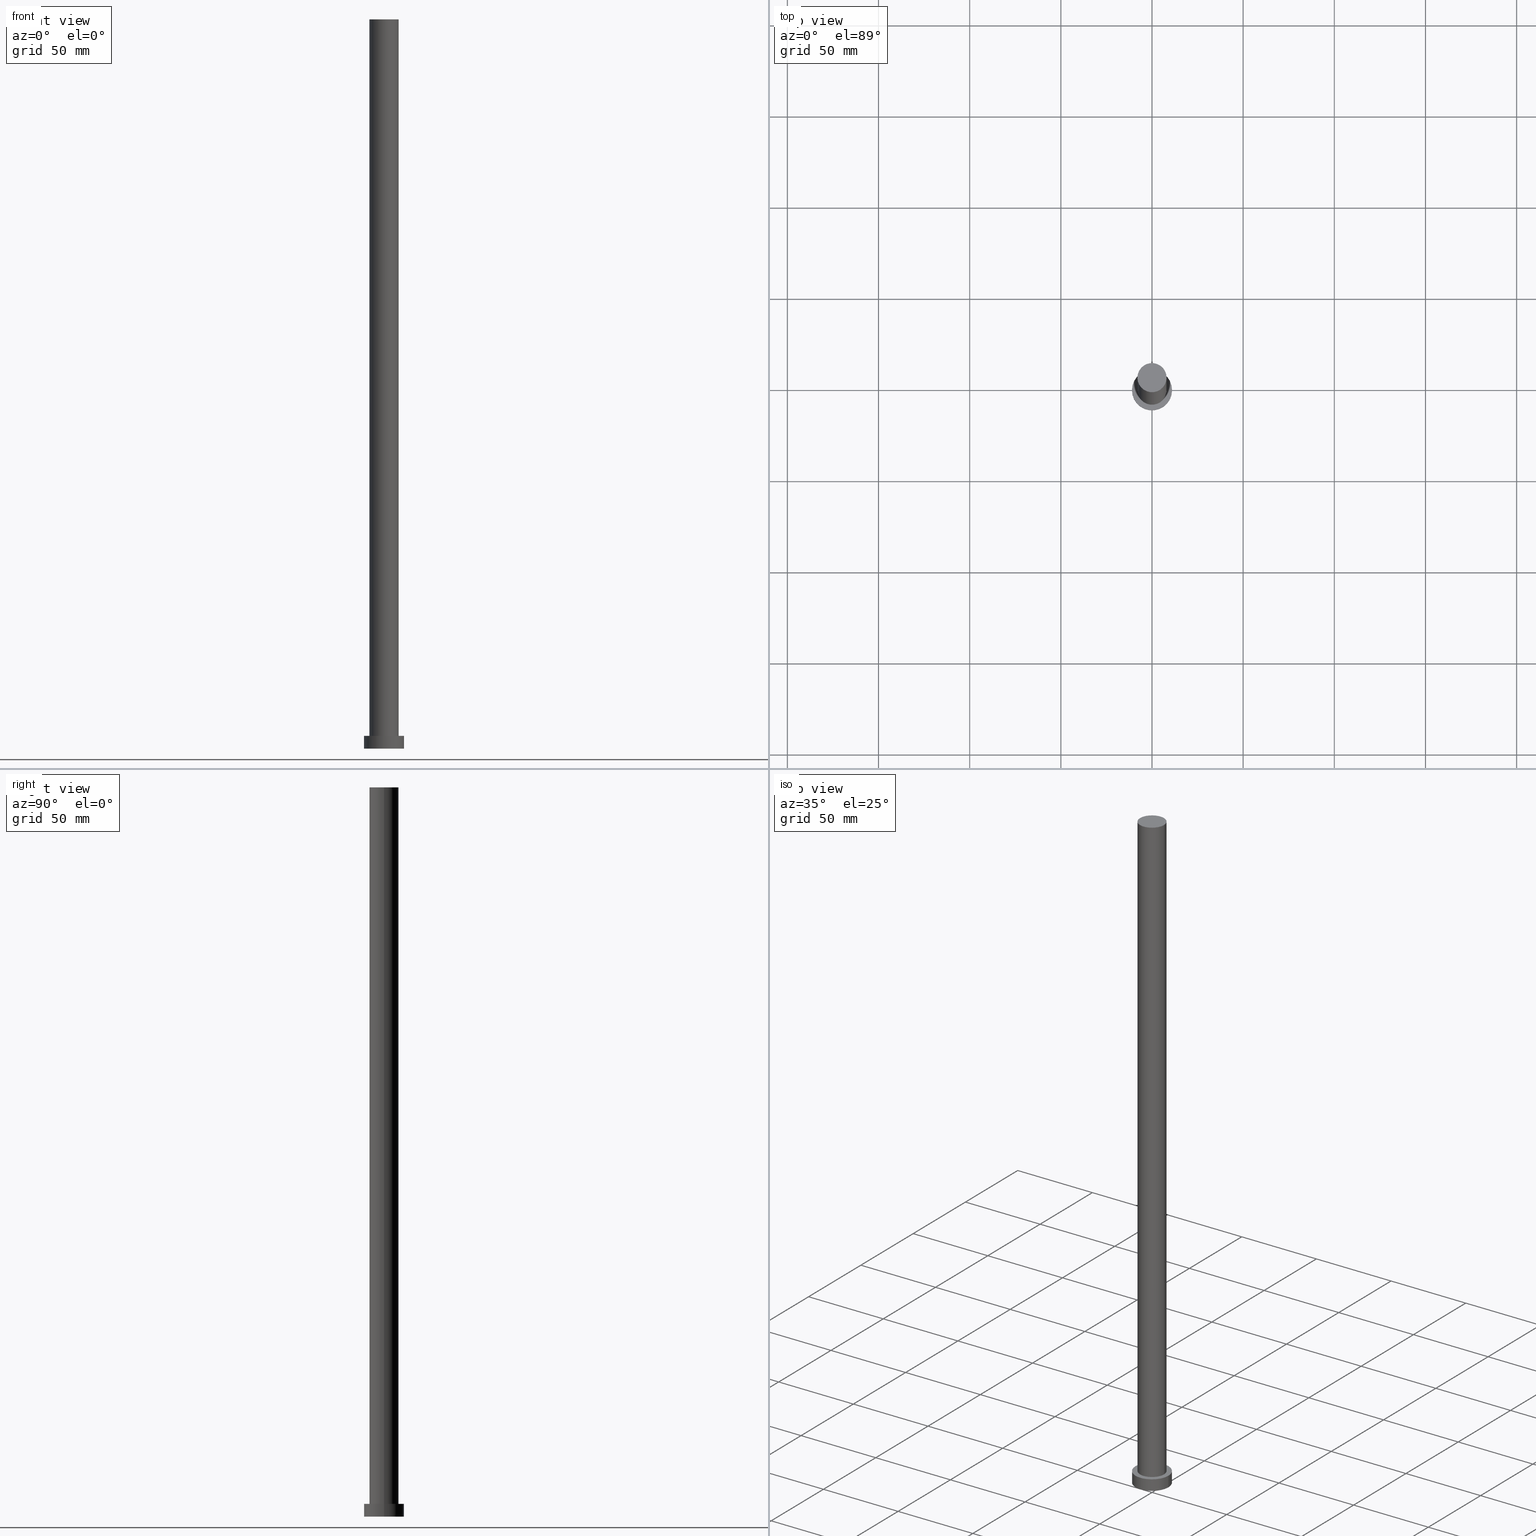
[diagram: canonical four-view strip — front | top / right | iso, engineering-drawing reading convention]
A machine part, canonical four-view strip (front | top / right | iso — engineering-drawing reading convention). The complete STEP part file that produces these views, byte-faithful:
ISO-10303-21;
HEADER;
FILE_DESCRIPTION (( 'STEP AP203' ),
    '1' );
FILE_NAME ('fac7.STEP',
    '2023-02-13T09:14:38',
    ( '' ),
    ( '' ),
    'SwSTEP 2.0',
    'SolidWorks 2019',
    '' );
FILE_SCHEMA (( 'CONFIG_CONTROL_DESIGN' ));
ENDSEC;

DATA;
#1 = CC_DESIGN_PERSON_AND_ORGANIZATION_ASSIGNMENT ( #152, #17, ( #95 ) ) ;
#2 = EDGE_LOOP ( 'NONE', ( #119, #62, #93, #112 ) ) ;
#3 = CARTESIAN_POINT ( 'NONE',  ( -11.00000000000000000, 0.000000000000000000, 0.000000000000000000 ) ) ;
#4 = DIRECTION ( 'NONE',  ( 1.000000000000000000, 0.000000000000000000, 0.000000000000000000 ) ) ;
#5 = EDGE_CURVE ( 'NONE', #236, #142, #19, .T. ) ;
#6 = CARTESIAN_POINT ( 'NONE',  ( 0.000000000000000000, 0.000000000000000000, 7.000000000000000000 ) ) ;
#7 = ORIENTED_EDGE ( 'NONE', *, *, #237, .F. ) ;
#8 = DIRECTION ( 'NONE',  ( 0.000000000000000000, 0.000000000000000000, 1.000000000000000000 ) ) ;
#9 = DIRECTION ( 'NONE',  ( 1.000000000000000000, 0.000000000000000000, 0.000000000000000000 ) ) ;
#10 = APPROVAL_ROLE ( '' ) ;
#11 = APPROVAL ( #233, 'NEUR�EN�' ) ;
#12 = CYLINDRICAL_SURFACE ( 'NONE', #150, 11.00000000000000000 ) ;
#13 = APPLICATION_CONTEXT ( 'configuration controlled 3d designs of mechanical parts and assemblies' ) ;
#14 = APPROVAL_ROLE ( '' ) ;
#15 = CIRCLE ( 'NONE', #74, 11.00000000000000000 ) ;
#16 = AXIS2_PLACEMENT_3D ( 'NONE', #42, #82, #118 ) ;
#17 = PERSON_AND_ORGANIZATION_ROLE ( 'creator' ) ;
#18 = CARTESIAN_POINT ( 'NONE',  ( 11.00000000000000000, 1.347111479062088405E-15, 0.000000000000000000 ) ) ;
#19 = CIRCLE ( 'NONE', #78, 11.00000000000000000 ) ;
#20 = CIRCLE ( 'NONE', #160, 8.000000000000000000 ) ;
#21 = ADVANCED_FACE ( 'NONE', ( #52 ), #12, .T. ) ;
#22 = APPROVAL_PERSON_ORGANIZATION ( #188, #11, #10 ) ;
#23 = PLANE ( 'NONE',  #25 ) ;
#24 = ADVANCED_FACE ( 'NONE', ( #170 ), #208, .T. ) ;
#25 = AXIS2_PLACEMENT_3D ( 'NONE', #137, #8, #225 ) ;
#26 = DIRECTION ( 'NONE',  ( -1.000000000000000000, 0.000000000000000000, 0.000000000000000000 ) ) ;
#27 = CARTESIAN_POINT ( 'NONE',  ( 0.000000000000000000, 0.000000000000000000, 400.0000000000000000 ) ) ;
#28 = PERSON_AND_ORGANIZATION ( #96, #156 ) ;
#29 = CARTESIAN_POINT ( 'NONE',  ( 0.000000000000000000, 0.000000000000000000, 0.000000000000000000 ) ) ;
#30 = DATE_AND_TIME ( #109, #219 ) ;
#31 = DIRECTION ( 'NONE',  ( 0.000000000000000000, 0.000000000000000000, 1.000000000000000000 ) ) ;
#32 = PERSON_AND_ORGANIZATION_ROLE ( 'creator' ) ;
#33 = EDGE_CURVE ( 'NONE', #250, #69, #198, .T. ) ;
#34 = PRODUCT ( 'fac7', 'fac7', '', ( #183 ) ) ;
#35 = LINE ( 'NONE', #113, #57 ) ;
#36 = PERSON_AND_ORGANIZATION_ROLE ( 'design_owner' ) ;
#37 = AXIS2_PLACEMENT_3D ( 'NONE', #210, #63, #98 ) ;
#38 = DATE_TIME_ROLE ( 'classification_date' ) ;
#39 = APPROVAL_DATE_TIME ( #175, #77 ) ;
#40 = EDGE_CURVE ( 'NONE', #69, #189, #35, .T. ) ;
#41 = ADVANCED_BREP_SHAPE_REPRESENTATION ( 'fac7', ( #45, #241 ), #56 ) ;
#42 = CARTESIAN_POINT ( 'NONE',  ( 0.000000000000000000, 0.000000000000000000, 7.000000000000000000 ) ) ;
#43 = ORIENTED_EDGE ( 'NONE', *, *, #33, .T. ) ;
#44 = CARTESIAN_POINT ( 'NONE',  ( 8.000000000000000000, 9.797174393178825657E-16, 400.0000000000000000 ) ) ;
#45 = MANIFOLD_SOLID_BREP ( 'P�idat vysunut�m3', #193 ) ;
#46 = EDGE_LOOP ( 'NONE', ( #148, #108, #71, #149 ) ) ;
#47 = DIRECTION ( 'NONE',  ( -0.000000000000000000, -0.000000000000000000, -1.000000000000000000 ) ) ;
#48 = CIRCLE ( 'NONE', #235, 11.00000000000000000 ) ;
#49 = ORIENTED_EDGE ( 'NONE', *, *, #130, .T. ) ;
#50 = APPROVAL ( #230, 'NEUR�EN�' ) ;
#51 = DIRECTION ( 'NONE',  ( 1.000000000000000000, 0.000000000000000000, 0.000000000000000000 ) ) ;
#52 = FACE_OUTER_BOUND ( 'NONE', #214, .T. ) ;
#53 = COORDINATED_UNIVERSAL_TIME_OFFSET ( 1, 0, .AHEAD. ) ;
#54 = AXIS2_PLACEMENT_3D ( 'NONE', #101, #201, #239 ) ;
#55 = ORIENTED_EDGE ( 'NONE', *, *, #130, .F. ) ;
#56 =( GEOMETRIC_REPRESENTATION_CONTEXT ( 3 ) GLOBAL_UNCERTAINTY_ASSIGNED_CONTEXT ( ( #209 ) ) GLOBAL_UNIT_ASSIGNED_CONTEXT ( ( #135, #184, #204 ) ) REPRESENTATION_CONTEXT ( 'NONE', 'WORKASPACE' ) );
#57 = VECTOR ( 'NONE', #196, 1000.000000000000000 ) ;
#58 = CALENDAR_DATE ( 2023, 13, 2 ) ;
#59 = CC_DESIGN_DATE_AND_TIME_ASSIGNMENT ( #117, #38, ( #248 ) ) ;
#60 = AXIS2_PLACEMENT_3D ( 'NONE', #27, #251, #127 ) ;
#61 = AXIS2_PLACEMENT_3D ( 'NONE', #242, #246, #180 ) ;
#62 = ORIENTED_EDGE ( 'NONE', *, *, #254, .T. ) ;
#63 = DIRECTION ( 'NONE',  ( 0.000000000000000000, 0.000000000000000000, 1.000000000000000000 ) ) ;
#64 = FACE_OUTER_BOUND ( 'NONE', #102, .T. ) ;
#65 = FACE_OUTER_BOUND ( 'NONE', #66, .T. ) ;
#66 = EDGE_LOOP ( 'NONE', ( #222, #139 ) ) ;
#67 = DIRECTION ( 'NONE',  ( 0.000000000000000000, 0.000000000000000000, 1.000000000000000000 ) ) ;
#68 = CC_DESIGN_PERSON_AND_ORGANIZATION_ASSIGNMENT ( #249, #147, ( #80 ) ) ;
#69 = VERTEX_POINT ( 'NONE', #90 ) ;
#70 = VECTOR ( 'NONE', #85, 1000.000000000000000 ) ;
#71 = ORIENTED_EDGE ( 'NONE', *, *, #104, .T. ) ;
#72 = ORIENTED_EDGE ( 'NONE', *, *, #40, .T. ) ;
#73 = VERTEX_POINT ( 'NONE', #86 ) ;
#74 = AXIS2_PLACEMENT_3D ( 'NONE', #247, #226, #51 ) ;
#75 = CC_DESIGN_APPROVAL ( #50, ( #95 ) ) ;
#76 = LINE ( 'NONE', #153, #70 ) ;
#77 = APPROVAL ( #97, 'NEUR�EN�' ) ;
#78 = AXIS2_PLACEMENT_3D ( 'NONE', #29, #31, #88 ) ;
#79 = SHAPE_DEFINITION_REPRESENTATION ( #213, #41 ) ;
#80 = PRODUCT_DEFINITION_FORMATION_WITH_SPECIFIED_SOURCE ( 'LIBOVOLN�', '', #34, .NOT_KNOWN. ) ;
#81 = ORIENTED_EDGE ( 'NONE', *, *, #207, .F. ) ;
#82 = DIRECTION ( 'NONE',  ( 0.000000000000000000, 0.000000000000000000, 1.000000000000000000 ) ) ;
#83 = ADVANCED_FACE ( 'NONE', ( #162 ), #243, .T. ) ;
#84 = APPLICATION_PROTOCOL_DEFINITION ( 'international standard', 'config_control_design', 1994, #133 ) ;
#85 = DIRECTION ( 'NONE',  ( -0.000000000000000000, -0.000000000000000000, -1.000000000000000000 ) ) ;
#86 = CARTESIAN_POINT ( 'NONE',  ( -11.00000000000000000, 0.000000000000000000, 7.000000000000000000 ) ) ;
#87 = CC_DESIGN_DATE_AND_TIME_ASSIGNMENT ( #172, #151, ( #95 ) ) ;
#88 = DIRECTION ( 'NONE',  ( 1.000000000000000000, 0.000000000000000000, 0.000000000000000000 ) ) ;
#89 = PLANE ( 'NONE',  #61 ) ;
#90 = CARTESIAN_POINT ( 'NONE',  ( -8.000000000000000000, 0.000000000000000000, 400.0000000000000000 ) ) ;
#91 = DATE_AND_TIME ( #255, #176 ) ;
#92 = CC_DESIGN_PERSON_AND_ORGANIZATION_ASSIGNMENT ( #168, #32, ( #80 ) ) ;
#93 = ORIENTED_EDGE ( 'NONE', *, *, #120, .T. ) ;
#94 = DIRECTION ( 'NONE',  ( -0.000000000000000000, -0.000000000000000000, -1.000000000000000000 ) ) ;
#95 = PRODUCT_DEFINITION ( 'NEZN�M�', '', #80, #128 ) ;
#96 = PERSON ( 'NEUR�EN�', 'NEUR�EN�', 'NEUR�EN�', ('NEUR�EN�'), ('NEUR�EN�'), ('NEUR�EN�') ) ;
#97 = APPROVAL_STATUS ( 'not_yet_approved' ) ;
#98 = DIRECTION ( 'NONE',  ( 1.000000000000000000, 0.000000000000000000, 0.000000000000000000 ) ) ;
#99 = LINE ( 'NONE', #197, #178 ) ;
#100 = CARTESIAN_POINT ( 'NONE',  ( 11.00000000000000000, 1.347111479062088405E-15, 7.000000000000000000 ) ) ;
#101 = CARTESIAN_POINT ( 'NONE',  ( 0.000000000000000000, 0.000000000000000000, 7.000000000000000000 ) ) ;
#102 = EDGE_LOOP ( 'NONE', ( #231, #43 ) ) ;
#103 = CYLINDRICAL_SURFACE ( 'NONE', #54, 11.00000000000000000 ) ;
#104 = EDGE_CURVE ( 'NONE', #125, #189, #200, .T. ) ;
#105 = LOCAL_TIME ( 10, 14, 38.00000000000000000, #232 ) ;
#106 = ORIENTED_EDGE ( 'NONE', *, *, #5, .T. ) ;
#107 = PERSON_AND_ORGANIZATION ( #96, #156 ) ;
#108 = ORIENTED_EDGE ( 'NONE', *, *, #134, .T. ) ;
#109 = CALENDAR_DATE ( 2023, 13, 2 ) ;
#110 = DIRECTION ( 'NONE',  ( 1.000000000000000000, 0.000000000000000000, 0.000000000000000000 ) ) ;
#111 = AXIS2_PLACEMENT_3D ( 'NONE', #145, #245, #9 ) ;
#112 = ORIENTED_EDGE ( 'NONE', *, *, #146, .F. ) ;
#113 = CARTESIAN_POINT ( 'NONE',  ( -8.000000000000000000, 0.000000000000000000, 400.0000000000000000 ) ) ;
#114 = AXIS2_PLACEMENT_3D ( 'NONE', #187, #217, #110 ) ;
#115 = VECTOR ( 'NONE', #47, 1000.000000000000000 ) ;
#116 = PERSON_AND_ORGANIZATION ( #96, #156 ) ;
#117 = DATE_AND_TIME ( #58, #129 ) ;
#118 = DIRECTION ( 'NONE',  ( 1.000000000000000000, 0.000000000000000000, 0.000000000000000000 ) ) ;
#119 = ORIENTED_EDGE ( 'NONE', *, *, #212, .F. ) ;
#120 = EDGE_CURVE ( 'NONE', #142, #236, #15, .T. ) ;
#121 = CARTESIAN_POINT ( 'NONE',  ( 0.000000000000000000, 0.000000000000000000, 400.0000000000000000 ) ) ;
#122 = CARTESIAN_POINT ( 'NONE',  ( 8.000000000000000000, 9.797174393178825657E-16, 7.000000000000000000 ) ) ;
#123 = PRODUCT_RELATED_PRODUCT_CATEGORY ( 'detail', '', ( #34 ) ) ;
#124 = PERSON_AND_ORGANIZATION ( #96, #156 ) ;
#125 = VERTEX_POINT ( 'NONE', #122 ) ;
#126 = APPROVAL_DATE_TIME ( #30, #50 ) ;
#127 = DIRECTION ( 'NONE',  ( -1.000000000000000000, 0.000000000000000000, 0.000000000000000000 ) ) ;
#128 = DESIGN_CONTEXT ( 'detailed design', #13, 'design' ) ;
#129 = LOCAL_TIME ( 10, 14, 38.00000000000000000, #190 ) ;
#130 = EDGE_CURVE ( 'NONE', #73, #182, #141, .T. ) ;
#131 = COORDINATED_UNIVERSAL_TIME_OFFSET ( 1, 0, .AHEAD. ) ;
#132 = CC_DESIGN_APPROVAL ( #77, ( #248 ) ) ;
#133 = APPLICATION_CONTEXT ( 'configuration controlled 3d designs of mechanical parts and assemblies' ) ;
#134 = EDGE_CURVE ( 'NONE', #250, #125, #99, .T. ) ;
#135 =( LENGTH_UNIT ( ) NAMED_UNIT ( * ) SI_UNIT ( .MILLI., .METRE. ) );
#136 = CC_DESIGN_SECURITY_CLASSIFICATION ( #248, ( #80 ) ) ;
#137 = CARTESIAN_POINT ( 'NONE',  ( 0.000000000000000000, 0.000000000000000000, 0.000000000000000000 ) ) ;
#138 = DIRECTION ( 'NONE',  ( 0.000000000000000000, 0.000000000000000000, 1.000000000000000000 ) ) ;
#139 = ORIENTED_EDGE ( 'NONE', *, *, #120, .F. ) ;
#140 = DIRECTION ( 'NONE',  ( 1.000000000000000000, 0.000000000000000000, 0.000000000000000000 ) ) ;
#141 = CIRCLE ( 'NONE', #37, 11.00000000000000000 ) ;
#142 = VERTEX_POINT ( 'NONE', #18 ) ;
#143 = AXIS2_PLACEMENT_3D ( 'NONE', #6, #240, #144 ) ;
#144 = DIRECTION ( 'NONE',  ( 1.000000000000000000, 0.000000000000000000, -0.000000000000000000 ) ) ;
#145 = CARTESIAN_POINT ( 'NONE',  ( 0.000000000000000000, 0.000000000000000000, 7.000000000000000000 ) ) ;
#146 = EDGE_CURVE ( 'NONE', #73, #236, #76, .T. ) ;
#147 = PERSON_AND_ORGANIZATION_ROLE ( 'design_supplier' ) ;
#148 = ORIENTED_EDGE ( 'NONE', *, *, #33, .F. ) ;
#149 = ORIENTED_EDGE ( 'NONE', *, *, #40, .F. ) ;
#150 = AXIS2_PLACEMENT_3D ( 'NONE', #167, #94, #224 ) ;
#151 = DATE_TIME_ROLE ( 'creation_date' ) ;
#152 = PERSON_AND_ORGANIZATION ( #96, #156 ) ;
#153 = CARTESIAN_POINT ( 'NONE',  ( -11.00000000000000000, 0.000000000000000000, 7.000000000000000000 ) ) ;
#154 = ORIENTED_EDGE ( 'NONE', *, *, #237, .T. ) ;
#155 = CALENDAR_DATE ( 2023, 13, 2 ) ;
#156 = ORGANIZATION ( 'NEUR�EN�', 'NEUR�EN�', '' ) ;
#157 = EDGE_LOOP ( 'NONE', ( #192, #81, #72, #154 ) ) ;
#158 = LINE ( 'NONE', #203, #115 ) ;
#159 = CARTESIAN_POINT ( 'NONE',  ( -8.000000000000000000, 0.000000000000000000, 7.000000000000000000 ) ) ;
#160 = AXIS2_PLACEMENT_3D ( 'NONE', #165, #161, #4 ) ;
#161 = DIRECTION ( 'NONE',  ( 0.000000000000000000, 0.000000000000000000, 1.000000000000000000 ) ) ;
#162 = FACE_OUTER_BOUND ( 'NONE', #157, .T. ) ;
#163 = DIRECTION ( 'NONE',  ( 1.000000000000000000, 0.000000000000000000, 0.000000000000000000 ) ) ;
#164 = ORIENTED_EDGE ( 'NONE', *, *, #104, .F. ) ;
#165 = CARTESIAN_POINT ( 'NONE',  ( 0.000000000000000000, 0.000000000000000000, 400.0000000000000000 ) ) ;
#166 = CC_DESIGN_PERSON_AND_ORGANIZATION_ASSIGNMENT ( #124, #211, ( #248 ) ) ;
#167 = CARTESIAN_POINT ( 'NONE',  ( 0.000000000000000000, 0.000000000000000000, 7.000000000000000000 ) ) ;
#168 = PERSON_AND_ORGANIZATION ( #96, #156 ) ;
#169 = ORIENTED_EDGE ( 'NONE', *, *, #146, .T. ) ;
#170 = FACE_OUTER_BOUND ( 'NONE', #46, .T. ) ;
#171 = APPROVAL_DATE_TIME ( #91, #11 ) ;
#172 = DATE_AND_TIME ( #216, #105 ) ;
#173 = DIRECTION ( 'NONE',  ( -0.000000000000000000, -0.000000000000000000, -1.000000000000000000 ) ) ;
#174 = AXIS2_PLACEMENT_3D ( 'NONE', #121, #205, #26 ) ;
#175 = DATE_AND_TIME ( #155, #252 ) ;
#176 = LOCAL_TIME ( 10, 14, 38.00000000000000000, #253 ) ;
#177 = APPROVAL_ROLE ( '' ) ;
#178 = VECTOR ( 'NONE', #173, 1000.000000000000000 ) ;
#179 = EDGE_LOOP ( 'NONE', ( #49, #229 ) ) ;
#180 = DIRECTION ( 'NONE',  ( 1.000000000000000000, 0.000000000000000000, -0.000000000000000000 ) ) ;
#181 = FACE_OUTER_BOUND ( 'NONE', #179, .T. ) ;
#182 = VERTEX_POINT ( 'NONE', #100 ) ;
#183 = MECHANICAL_CONTEXT ( 'NONE', #133, 'mechanical' ) ;
#184 =( NAMED_UNIT ( * ) PLANE_ANGLE_UNIT ( ) SI_UNIT ( $, .RADIAN. ) );
#185 = ORIENTED_EDGE ( 'NONE', *, *, #254, .F. ) ;
#186 = CARTESIAN_POINT ( 'NONE',  ( 0.000000000000000000, 0.000000000000000000, 7.000000000000000000 ) ) ;
#187 = CARTESIAN_POINT ( 'NONE',  ( 0.000000000000000000, 0.000000000000000000, 400.0000000000000000 ) ) ;
#188 = PERSON_AND_ORGANIZATION ( #96, #156 ) ;
#189 = VERTEX_POINT ( 'NONE', #159 ) ;
#190 = COORDINATED_UNIVERSAL_TIME_OFFSET ( 1, 0, .AHEAD. ) ;
#191 = CC_DESIGN_PERSON_AND_ORGANIZATION_ASSIGNMENT ( #107, #36, ( #34 ) ) ;
#192 = ORIENTED_EDGE ( 'NONE', *, *, #134, .F. ) ;
#193 = CLOSED_SHELL ( 'NONE', ( #24, #221, #21, #195, #227, #83, #234 ) ) ;
#194 = APPLICATION_PROTOCOL_DEFINITION ( 'international standard', 'config_control_design', 1994, #13 ) ;
#195 = ADVANCED_FACE ( 'NONE', ( #223, #181 ), #220, .T. ) ;
#196 = DIRECTION ( 'NONE',  ( -0.000000000000000000, -0.000000000000000000, -1.000000000000000000 ) ) ;
#197 = CARTESIAN_POINT ( 'NONE',  ( 8.000000000000000000, 9.797174393178825657E-16, 400.0000000000000000 ) ) ;
#198 = CIRCLE ( 'NONE', #114, 8.000000000000000000 ) ;
#199 = APPROVAL_PERSON_ORGANIZATION ( #28, #50, #14 ) ;
#200 = CIRCLE ( 'NONE', #111, 8.000000000000000000 ) ;
#201 = DIRECTION ( 'NONE',  ( -0.000000000000000000, -0.000000000000000000, -1.000000000000000000 ) ) ;
#202 = CC_DESIGN_APPROVAL ( #11, ( #80 ) ) ;
#203 = CARTESIAN_POINT ( 'NONE',  ( 11.00000000000000000, 1.347111479062088405E-15, 7.000000000000000000 ) ) ;
#204 =( NAMED_UNIT ( * ) SI_UNIT ( $, .STERADIAN. ) SOLID_ANGLE_UNIT ( ) );
#205 = DIRECTION ( 'NONE',  ( -0.000000000000000000, -0.000000000000000000, -1.000000000000000000 ) ) ;
#206 = CIRCLE ( 'NONE', #16, 8.000000000000000000 ) ;
#207 = EDGE_CURVE ( 'NONE', #69, #250, #20, .T. ) ;
#208 = CYLINDRICAL_SURFACE ( 'NONE', #60, 8.000000000000000000 ) ;
#209 = UNCERTAINTY_MEASURE_WITH_UNIT (LENGTH_MEASURE( 1.000000000000000082E-05 ), #135, 'distance_accuracy_value', 'NONE');
#210 = CARTESIAN_POINT ( 'NONE',  ( 0.000000000000000000, 0.000000000000000000, 7.000000000000000000 ) ) ;
#211 = PERSON_AND_ORGANIZATION_ROLE ( 'classification_officer' ) ;
#212 = EDGE_CURVE ( 'NONE', #182, #73, #48, .T. ) ;
#213 = PRODUCT_DEFINITION_SHAPE ( 'NONE', 'NONE',  #95 ) ;
#214 = EDGE_LOOP ( 'NONE', ( #185, #55, #169, #106 ) ) ;
#215 = APPROVAL_PERSON_ORGANIZATION ( #116, #77, #177 ) ;
#216 = CALENDAR_DATE ( 2023, 13, 2 ) ;
#217 = DIRECTION ( 'NONE',  ( 0.000000000000000000, 0.000000000000000000, 1.000000000000000000 ) ) ;
#218 = FACE_OUTER_BOUND ( 'NONE', #2, .T. ) ;
#219 = LOCAL_TIME ( 10, 14, 38.00000000000000000, #53 ) ;
#220 = PLANE ( 'NONE',  #143 ) ;
#221 = ADVANCED_FACE ( 'NONE', ( #218 ), #103, .T. ) ;
#222 = ORIENTED_EDGE ( 'NONE', *, *, #5, .F. ) ;
#223 = FACE_BOUND ( 'NONE', #238, .T. ) ;
#224 = DIRECTION ( 'NONE',  ( -1.000000000000000000, 0.000000000000000000, 0.000000000000000000 ) ) ;
#225 = DIRECTION ( 'NONE',  ( 1.000000000000000000, 0.000000000000000000, -0.000000000000000000 ) ) ;
#226 = DIRECTION ( 'NONE',  ( 0.000000000000000000, 0.000000000000000000, 1.000000000000000000 ) ) ;
#227 = ADVANCED_FACE ( 'NONE', ( #65 ), #23, .F. ) ;
#228 = SECURITY_CLASSIFICATION_LEVEL ( 'unclassified' ) ;
#229 = ORIENTED_EDGE ( 'NONE', *, *, #212, .T. ) ;
#230 = APPROVAL_STATUS ( 'not_yet_approved' ) ;
#231 = ORIENTED_EDGE ( 'NONE', *, *, #207, .T. ) ;
#232 = COORDINATED_UNIVERSAL_TIME_OFFSET ( 1, 0, .AHEAD. ) ;
#233 = APPROVAL_STATUS ( 'not_yet_approved' ) ;
#234 = ADVANCED_FACE ( 'NONE', ( #64 ), #89, .T. ) ;
#235 = AXIS2_PLACEMENT_3D ( 'NONE', #186, #138, #163 ) ;
#236 = VERTEX_POINT ( 'NONE', #3 ) ;
#237 = EDGE_CURVE ( 'NONE', #189, #125, #206, .T. ) ;
#238 = EDGE_LOOP ( 'NONE', ( #7, #164 ) ) ;
#239 = DIRECTION ( 'NONE',  ( -1.000000000000000000, 0.000000000000000000, 0.000000000000000000 ) ) ;
#240 = DIRECTION ( 'NONE',  ( 0.000000000000000000, 0.000000000000000000, 1.000000000000000000 ) ) ;
#241 = AXIS2_PLACEMENT_3D ( 'NONE', #244, #67, #140 ) ;
#242 = CARTESIAN_POINT ( 'NONE',  ( 0.000000000000000000, 0.000000000000000000, 400.0000000000000000 ) ) ;
#243 = CYLINDRICAL_SURFACE ( 'NONE', #174, 8.000000000000000000 ) ;
#244 = CARTESIAN_POINT ( 'NONE',  ( 0.000000000000000000, 0.000000000000000000, 0.000000000000000000 ) ) ;
#245 = DIRECTION ( 'NONE',  ( 0.000000000000000000, 0.000000000000000000, 1.000000000000000000 ) ) ;
#246 = DIRECTION ( 'NONE',  ( 0.000000000000000000, 0.000000000000000000, 1.000000000000000000 ) ) ;
#247 = CARTESIAN_POINT ( 'NONE',  ( 0.000000000000000000, 0.000000000000000000, 0.000000000000000000 ) ) ;
#248 = SECURITY_CLASSIFICATION ( '', '', #228 ) ;
#249 = PERSON_AND_ORGANIZATION ( #96, #156 ) ;
#250 = VERTEX_POINT ( 'NONE', #44 ) ;
#251 = DIRECTION ( 'NONE',  ( -0.000000000000000000, -0.000000000000000000, -1.000000000000000000 ) ) ;
#252 = LOCAL_TIME ( 10, 14, 38.00000000000000000, #131 ) ;
#253 = COORDINATED_UNIVERSAL_TIME_OFFSET ( 1, 0, .AHEAD. ) ;
#254 = EDGE_CURVE ( 'NONE', #182, #142, #158, .T. ) ;
#255 = CALENDAR_DATE ( 2023, 13, 2 ) ;
ENDSEC;
END-ISO-10303-21;
